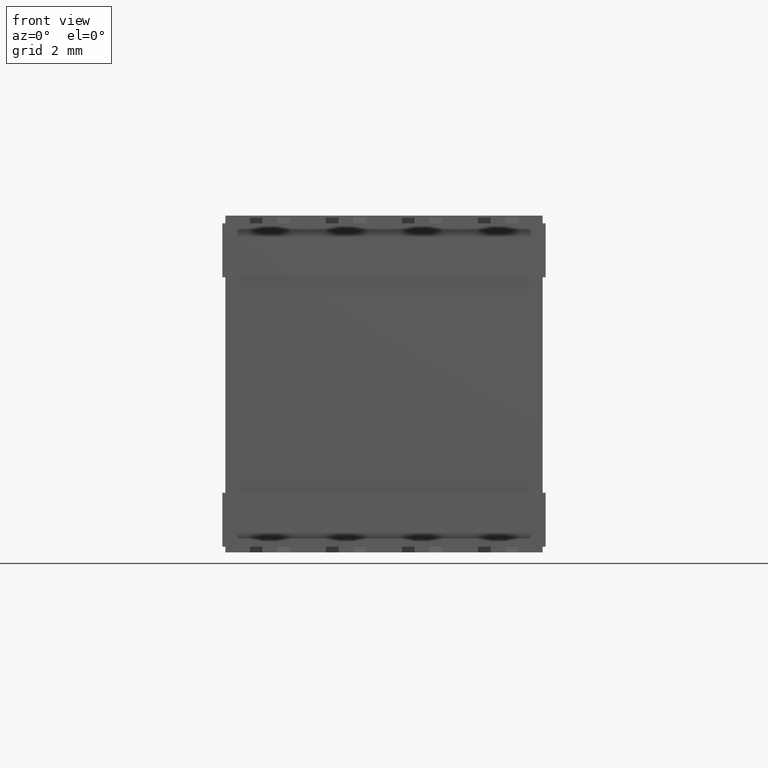
[diagram: clean part render]
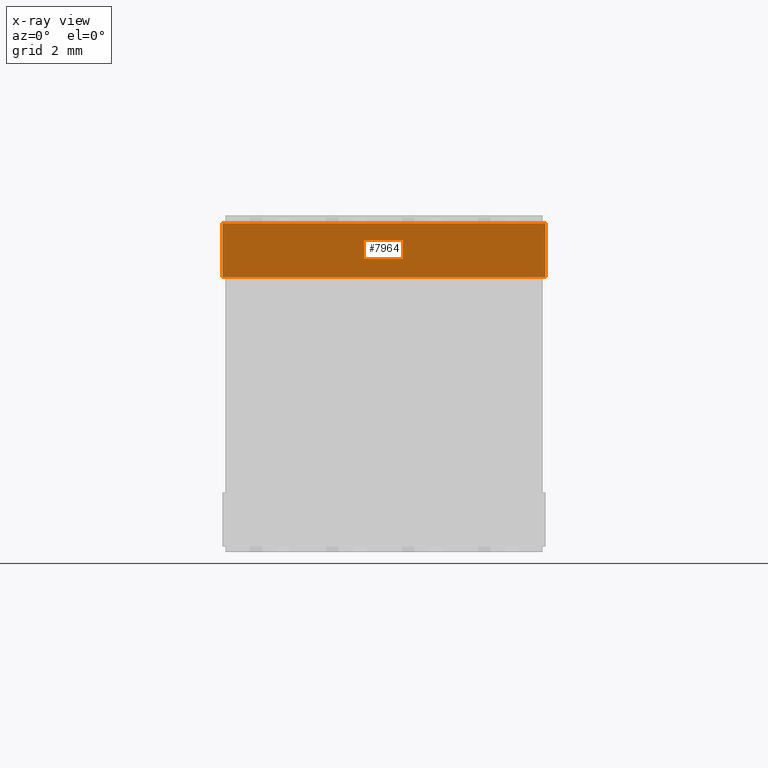
[diagram: x-ray — body ghosted, one internal face saturated and labeled with its STEP entity id]
A machine part, front view, then the same camera in x-ray: the body is ghosted and one INTERNAL B-rep face — a face not visible from any outside direction — is saturated and labeled: STEP entity #7964.
In plain terms, the highlighted planar face has unit normal (0, 1, 0).
Its self-contained STEP definition (entity closure, byte-faithful):
#369 = CARTESIAN_POINT ( 'NONE',  ( 0.0000000000000000000, 5.387500000000002000, -1.800000000000000000 ) ) ;
#398 = CARTESIAN_POINT ( 'NONE',  ( 0.0000000000000000000, 5.387500000000000200, 0.0000000000000000000 ) ) ;
#481 = CARTESIAN_POINT ( 'NONE',  ( 10.69500000000001100, 5.387500000000000200, 0.0000000000000000000 ) ) ;
#533 = CARTESIAN_POINT ( 'NONE',  ( 0.0000000000000000000, 5.387500000000000200, 0.0000000000000000000 ) ) ;
#787 = VERTEX_POINT ( 'NONE', #1700 ) ;
#964 = FACE_OUTER_BOUND ( 'NONE', #8090, .T. ) ;
#1184 = DIRECTION ( 'NONE',  ( 1.000000000000000000, -0.0000000000000000000, -0.0000000000000000000 ) ) ;
#1373 = ORIENTED_EDGE ( 'NONE', *, *, #2790, .F. ) ;
#1438 = LINE ( 'NONE', #533, #3249 ) ;
#1700 = CARTESIAN_POINT ( 'NONE',  ( 0.09999999999998819600, 5.387500000000000200, 0.0000000000000000000 ) ) ;
#1719 = VERTEX_POINT ( 'NONE', #369 ) ;
#1800 = ORIENTED_EDGE ( 'NONE', *, *, #4598, .F. ) ;
#1840 = DIRECTION ( 'NONE',  ( 1.000000000000000000, -0.0000000000000000000, -0.0000000000000000000 ) ) ;
#1853 = DIRECTION ( 'NONE',  ( 0.0000000000000000000, -9.637352644315594700E-016, 1.000000000000000000 ) ) ;
#2037 = VECTOR ( 'NONE', #1184, 1000.000000000000000 ) ;
#2131 = VECTOR ( 'NONE', #6153, 1000.000000000000000 ) ;
#2304 = ORIENTED_EDGE ( 'NONE', *, *, #4576, .T. ) ;
#2571 = EDGE_CURVE ( 'NONE', #5742, #8177, #6326, .T. ) ;
#2707 = DIRECTION ( 'NONE',  ( 0.0000000000000000000, -9.637352644315594700E-016, 1.000000000000000000 ) ) ;
#2755 = VECTOR ( 'NONE', #3432, 1000.000000000000000 ) ;
#2790 = EDGE_CURVE ( 'NONE', #4755, #787, #1438, .T. ) ;
#2830 = EDGE_CURVE ( 'NONE', #1719, #4755, #3164, .T. ) ;
#3164 = LINE ( 'NONE', #6316, #4969 ) ;
#3249 = VECTOR ( 'NONE', #5077, 1000.000000000000000 ) ;
#3323 = DIRECTION ( 'NONE',  ( 0.0000000000000000000, 1.000000000000000000, 9.637352644315594700E-016 ) ) ;
#3432 = DIRECTION ( 'NONE',  ( 0.0000000000000000000, -9.637352644315594700E-016, 1.000000000000000000 ) ) ;
#3550 = VECTOR ( 'NONE', #1840, 1000.000000000000000 ) ;
#3881 = CARTESIAN_POINT ( 'NONE',  ( 0.0000000000000000000, 5.387500000000000200, 0.0000000000000000000 ) ) ;
#4299 = EDGE_CURVE ( 'NONE', #787, #8408, #7207, .T. ) ;
#4331 = ORIENTED_EDGE ( 'NONE', *, *, #2571, .T. ) ;
#4576 = EDGE_CURVE ( 'NONE', #1719, #5742, #6703, .T. ) ;
#4598 = EDGE_CURVE ( 'NONE', #8408, #8177, #8141, .T. ) ;
#4607 = PLANE ( 'NONE',  #6485 ) ;
#4681 = ORIENTED_EDGE ( 'NONE', *, *, #2830, .F. ) ;
#4755 = VERTEX_POINT ( 'NONE', #3881 ) ;
#4825 = CARTESIAN_POINT ( 'NONE',  ( 0.0000000000000000000, 5.387500000000002000, -1.800000000000000000 ) ) ;
#4969 = VECTOR ( 'NONE', #1853, 1000.000000000000000 ) ;
#5077 = DIRECTION ( 'NONE',  ( 1.000000000000000000, -0.0000000000000000000, -0.0000000000000000000 ) ) ;
#5200 = CARTESIAN_POINT ( 'NONE',  ( 10.79500000000000000, 5.387500000000002000, -1.800000000000000000 ) ) ;
#5633 = CARTESIAN_POINT ( 'NONE',  ( 0.0000000000000000000, 5.387500000000000200, 0.0000000000000000000 ) ) ;
#5742 = VERTEX_POINT ( 'NONE', #7028 ) ;
#5935 = ORIENTED_EDGE ( 'NONE', *, *, #4299, .F. ) ;
#6092 = CARTESIAN_POINT ( 'NONE',  ( 10.79500000000000000, 5.387500000000000200, 0.0000000000000000000 ) ) ;
#6153 = DIRECTION ( 'NONE',  ( 1.000000000000000000, -0.0000000000000000000, -0.0000000000000000000 ) ) ;
#6316 = CARTESIAN_POINT ( 'NONE',  ( 0.0000000000000000000, 5.387500000000002000, -1.800000000000000000 ) ) ;
#6326 = LINE ( 'NONE', #5200, #2755 ) ;
#6485 = AXIS2_PLACEMENT_3D ( 'NONE', #7217, #3323, #2707 ) ;
#6703 = LINE ( 'NONE', #4825, #2131 ) ;
#7028 = CARTESIAN_POINT ( 'NONE',  ( 10.79500000000000000, 5.387500000000002000, -1.800000000000000000 ) ) ;
#7207 = LINE ( 'NONE', #5633, #2037 ) ;
#7217 = CARTESIAN_POINT ( 'NONE',  ( 0.0000000000000000000, 5.387500000000002000, -1.800000000000000000 ) ) ;
#7964 = ADVANCED_FACE ( 'NONE', ( #964 ), #4607, .F. ) ;
#8090 = EDGE_LOOP ( 'NONE', ( #4331, #1800, #5935, #1373, #4681, #2304 ) ) ;
#8141 = LINE ( 'NONE', #398, #3550 ) ;
#8177 = VERTEX_POINT ( 'NONE', #6092 ) ;
#8408 = VERTEX_POINT ( 'NONE', #481 ) ;